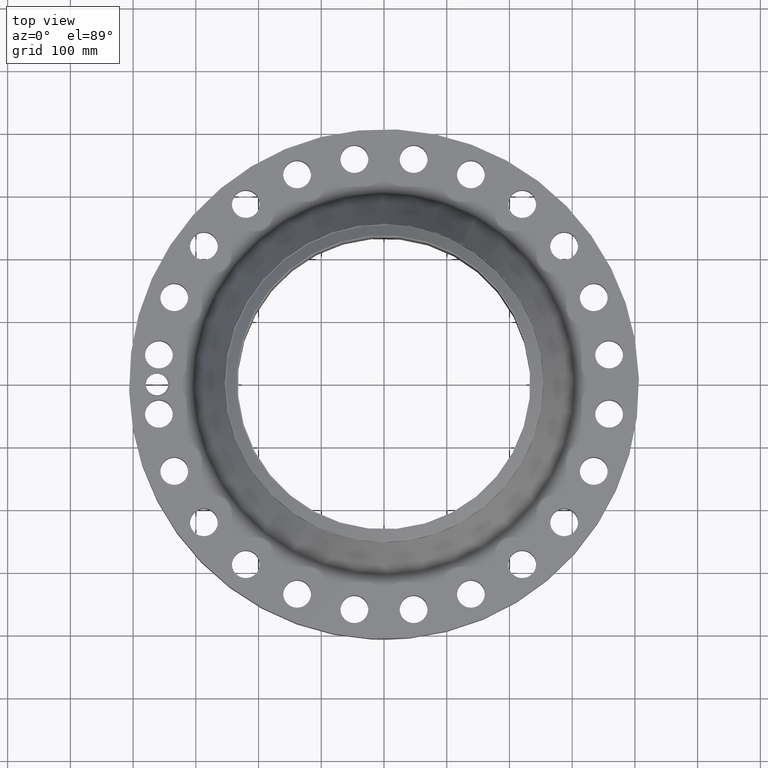
[diagram: clean part render]
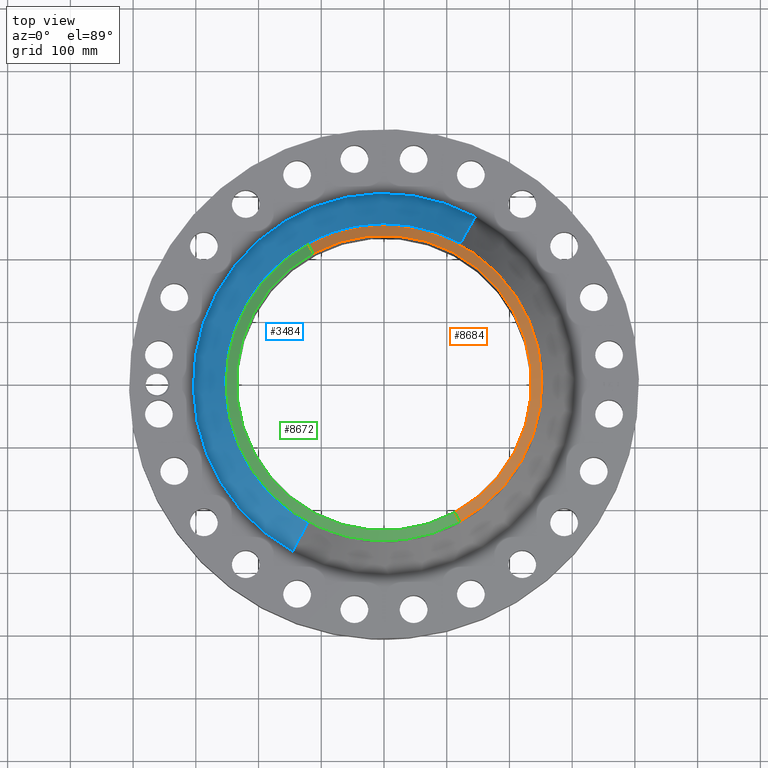
[diagram: same view with three faces highlighted in distinct colors, each labeled with its STEP entity id]
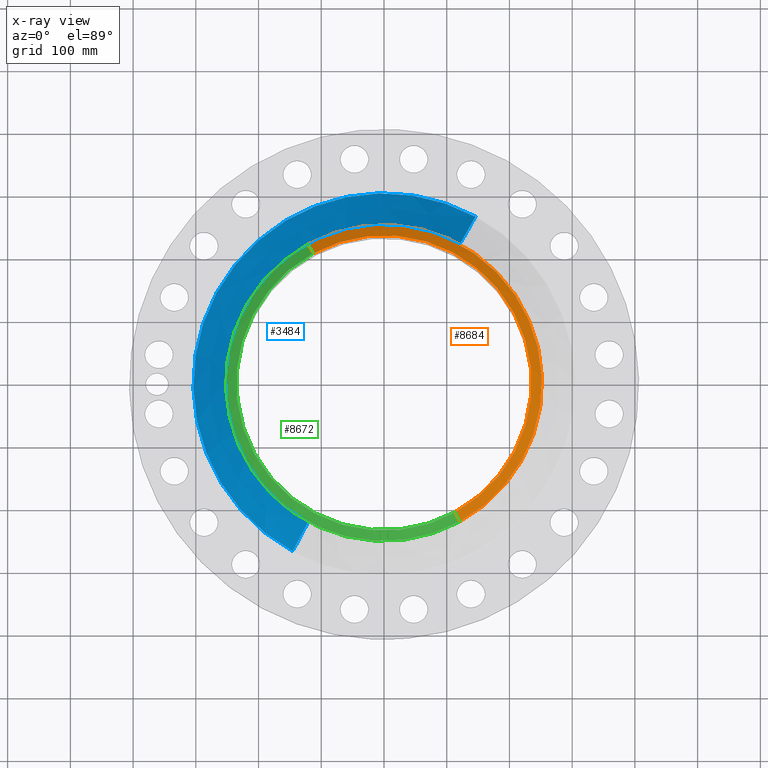
[diagram: x-ray of the same camera — body ghosted, the three highlighted faces saturated]
A machine part, top view with three faces highlighted in distinct colors.
The next image is the same camera in x-ray (body ghosted, the three faces saturated) — at least one of them is partly hidden behind the body in this view.
Their STEP definitions:

[orange] entity #8684 — the highlighted conical surface has half-angle 52.5 deg.
#5085=AXIS2_PLACEMENT_3D('Circle Axis2P3D',#5083,#5084,$) ;
#8645=AXIS2_PLACEMENT_3D('Cone Axis2P3D',#8642,#8643,#8644) ;
#8675=AXIS2_PLACEMENT_3D('Circle Axis2P3D',#8673,#8674,$) ;
#5083=CARTESIAN_POINT('Axis2P3D Location',(0.,0.,7.75000000003)) ;
#5087=CARTESIAN_POINT('Vertex',(4.44271189112,-8.13232956781,7.75000000003)) ;
#5089=CARTESIAN_POINT('Vertex',(-4.44271189112,8.13232956781,7.75000000003)) ;
#8642=CARTESIAN_POINT('Axis2P3D Location',(0.,0.,7.75000000003)) ;
#8647=CARTESIAN_POINT('Line Origine',(-4.59765319367,8.41594771971,7.5020143726)) ;
#8651=CARTESIAN_POINT('Vertex',(-4.75259449622,8.69956587161,7.25402874516)) ;
#8658=CARTESIAN_POINT('Vertex',(4.75259449622,-8.69956587161,7.25402874516)) ;
#8661=CARTESIAN_POINT('Line Origine',(4.59765319367,-8.41594771971,7.5020143726)) ;
#8673=CARTESIAN_POINT('Axis2P3D Location',(0.,0.,7.25402874516)) ;
#5084=DIRECTION('Axis2P3D Direction',(0.,0.,-0.0393700787402)) ;
#8643=DIRECTION('Axis2P3D Direction',(-0.,-0.,-0.0393700787402)) ;
#8644=DIRECTION('Axis2P3D XDirection',(-0.0188750212049,0.0345504945626,0.)) ;
#8648=DIRECTION('Vector Direction',(-0.014974561121,0.02741075027,-0.023966985394)) ;
#8662=DIRECTION('Vector Direction',(0.014974561121,-0.02741075027,-0.023966985394)) ;
#8674=DIRECTION('Axis2P3D Direction',(0.,0.,-0.0393700787402)) ;
#8649=VECTOR('Line Direction',#8648,0.0393700787402) ;
#8663=VECTOR('Line Direction',#8662,0.0393700787402) ;
#8679=ORIENTED_EDGE('',*,*,#5091,.F.) ;
#8680=ORIENTED_EDGE('',*,*,#8665,.T.) ;
#8681=ORIENTED_EDGE('',*,*,#8677,.T.) ;
#8682=ORIENTED_EDGE('',*,*,#8653,.F.) ;
#8684=ADVANCED_FACE('PartBody',(#8683),#8646,.T.) ;
#5086=CIRCLE('generated circle',#5085,9.26674015752) ;
#8676=CIRCLE('generated circle',#8675,9.91310248106) ;
#8646=CONICAL_SURFACE('Cone',#8645,9.26674015752,0.916297857297) ;
#5091=EDGE_CURVE('',#5088,#5090,#5086,.F.) ;
#8653=EDGE_CURVE('',#5090,#8652,#8650,.T.) ;
#8665=EDGE_CURVE('',#5088,#8659,#8664,.T.) ;
#8677=EDGE_CURVE('',#8659,#8652,#8676,.F.) ;
#8678=EDGE_LOOP('',(#8679,#8680,#8681,#8682)) ;
#8683=FACE_OUTER_BOUND('',#8678,.T.) ;
#8650=LINE('Line',#8647,#8649) ;
#8664=LINE('Line',#8661,#8663) ;
#5088=VERTEX_POINT('',#5087) ;
#5090=VERTEX_POINT('',#5089) ;
#8652=VERTEX_POINT('',#8651) ;
#8659=VERTEX_POINT('',#8658) ;

[blue] entity #3484 — the highlighted conical surface has half-angle 31.695 deg.
#2852=AXIS2_PLACEMENT_3D('Circle Axis2P3D',#2850,#2851,$) ;
#3445=AXIS2_PLACEMENT_3D('Cone Axis2P3D',#3442,#3443,#3444) ;
#3475=AXIS2_PLACEMENT_3D('Circle Axis2P3D',#3473,#3474,$) ;
#2828=CARTESIAN_POINT('Vertex',(5.73624624568,10.5001283214,3.80695268809)) ;
#2835=CARTESIAN_POINT('Vertex',(-5.73624624568,-10.5001283214,3.80695268809)) ;
#2850=CARTESIAN_POINT('Axis2P3D Location',(0.,0.,3.80695268809)) ;
#3442=CARTESIAN_POINT('Axis2P3D Location',(0.,0.,6.98893484751)) ;
#3447=CARTESIAN_POINT('Line Origine',(5.26525081587,9.63797697019,5.3979437678)) ;
#3451=CARTESIAN_POINT('Vertex',(4.79425538606,8.77582561894,6.98893484751)) ;
#3458=CARTESIAN_POINT('Vertex',(-4.79425538606,-8.77582561894,6.98893484751)) ;
#3461=CARTESIAN_POINT('Line Origine',(-5.26525081587,-9.63797697019,5.3979437678)) ;
#3473=CARTESIAN_POINT('Axis2P3D Location',(0.,0.,6.98893484751)) ;
#2851=DIRECTION('Axis2P3D Direction',(0.,0.,-0.0393700787402)) ;
#3443=DIRECTION('Axis2P3D Direction',(0.,0.,-0.0393700787402)) ;
#3444=DIRECTION('Axis2P3D XDirection',(-0.0188750212049,-0.0345504945626,0.)) ;
#3448=DIRECTION('Vector Direction',(0.00991682791293,0.018152631733,-0.0334983818314)) ;
#3462=DIRECTION('Vector Direction',(-0.00991682791293,-0.018152631733,-0.0334983818314)) ;
#3474=DIRECTION('Axis2P3D Direction',(0.,0.,-0.0393700787402)) ;
#3449=VECTOR('Line Direction',#3448,0.0393700787402) ;
#3463=VECTOR('Line Direction',#3462,0.0393700787402) ;
#3479=ORIENTED_EDGE('',*,*,#2854,.F.) ;
#3480=ORIENTED_EDGE('',*,*,#3465,.T.) ;
#3481=ORIENTED_EDGE('',*,*,#3477,.T.) ;
#3482=ORIENTED_EDGE('',*,*,#3453,.F.) ;
#3484=ADVANCED_FACE('PartBody',(#3483),#3446,.T.) ;
#2853=CIRCLE('generated circle',#2852,11.9648324584) ;
#3476=CIRCLE('generated circle',#3475,10.) ;
#3446=CONICAL_SURFACE('Cone',#3445,10.,0.553178421046) ;
#2854=EDGE_CURVE('',#2836,#2829,#2853,.T.) ;
#3453=EDGE_CURVE('',#2829,#3452,#3450,.F.) ;
#3465=EDGE_CURVE('',#2836,#3459,#3464,.F.) ;
#3477=EDGE_CURVE('',#3459,#3452,#3476,.T.) ;
#3478=EDGE_LOOP('',(#3479,#3480,#3481,#3482)) ;
#3483=FACE_OUTER_BOUND('',#3478,.T.) ;
#3450=LINE('Line',#3447,#3449) ;
#3464=LINE('Line',#3461,#3463) ;
#2829=VERTEX_POINT('',#2828) ;
#2836=VERTEX_POINT('',#2835) ;
#3452=VERTEX_POINT('',#3451) ;
#3459=VERTEX_POINT('',#3458) ;

[green] entity #8672 — the highlighted conical surface has half-angle 52.5 deg.
#5094=AXIS2_PLACEMENT_3D('Circle Axis2P3D',#5092,#5093,$) ;
#8645=AXIS2_PLACEMENT_3D('Cone Axis2P3D',#8642,#8643,#8644) ;
#8656=AXIS2_PLACEMENT_3D('Circle Axis2P3D',#8654,#8655,$) ;
#5087=CARTESIAN_POINT('Vertex',(4.44271189112,-8.13232956781,7.75000000003)) ;
#5089=CARTESIAN_POINT('Vertex',(-4.44271189112,8.13232956781,7.75000000003)) ;
#5092=CARTESIAN_POINT('Axis2P3D Location',(0.,0.,7.75000000003)) ;
#8642=CARTESIAN_POINT('Axis2P3D Location',(0.,0.,7.75000000003)) ;
#8647=CARTESIAN_POINT('Line Origine',(-4.59765319367,8.41594771971,7.5020143726)) ;
#8651=CARTESIAN_POINT('Vertex',(-4.75259449622,8.69956587161,7.25402874516)) ;
#8654=CARTESIAN_POINT('Axis2P3D Location',(0.,0.,7.25402874516)) ;
#8658=CARTESIAN_POINT('Vertex',(4.75259449622,-8.69956587161,7.25402874516)) ;
#8661=CARTESIAN_POINT('Line Origine',(4.59765319367,-8.41594771971,7.5020143726)) ;
#5093=DIRECTION('Axis2P3D Direction',(0.,0.,-0.0393700787402)) ;
#8643=DIRECTION('Axis2P3D Direction',(-0.,-0.,-0.0393700787402)) ;
#8644=DIRECTION('Axis2P3D XDirection',(-0.0188750212049,0.0345504945626,0.)) ;
#8648=DIRECTION('Vector Direction',(-0.014974561121,0.02741075027,-0.023966985394)) ;
#8655=DIRECTION('Axis2P3D Direction',(0.,0.,-0.0393700787402)) ;
#8662=DIRECTION('Vector Direction',(0.014974561121,-0.02741075027,-0.023966985394)) ;
#8649=VECTOR('Line Direction',#8648,0.0393700787402) ;
#8663=VECTOR('Line Direction',#8662,0.0393700787402) ;
#8667=ORIENTED_EDGE('',*,*,#5096,.F.) ;
#8668=ORIENTED_EDGE('',*,*,#8653,.T.) ;
#8669=ORIENTED_EDGE('',*,*,#8660,.T.) ;
#8670=ORIENTED_EDGE('',*,*,#8665,.F.) ;
#8672=ADVANCED_FACE('PartBody',(#8671),#8646,.T.) ;
#5095=CIRCLE('generated circle',#5094,9.26674015752) ;
#8657=CIRCLE('generated circle',#8656,9.91310248106) ;
#8646=CONICAL_SURFACE('Cone',#8645,9.26674015752,0.916297857297) ;
#5096=EDGE_CURVE('',#5090,#5088,#5095,.F.) ;
#8653=EDGE_CURVE('',#5090,#8652,#8650,.T.) ;
#8660=EDGE_CURVE('',#8652,#8659,#8657,.F.) ;
#8665=EDGE_CURVE('',#5088,#8659,#8664,.T.) ;
#8666=EDGE_LOOP('',(#8667,#8668,#8669,#8670)) ;
#8671=FACE_OUTER_BOUND('',#8666,.T.) ;
#8650=LINE('Line',#8647,#8649) ;
#8664=LINE('Line',#8661,#8663) ;
#5088=VERTEX_POINT('',#5087) ;
#5090=VERTEX_POINT('',#5089) ;
#8652=VERTEX_POINT('',#8651) ;
#8659=VERTEX_POINT('',#8658) ;